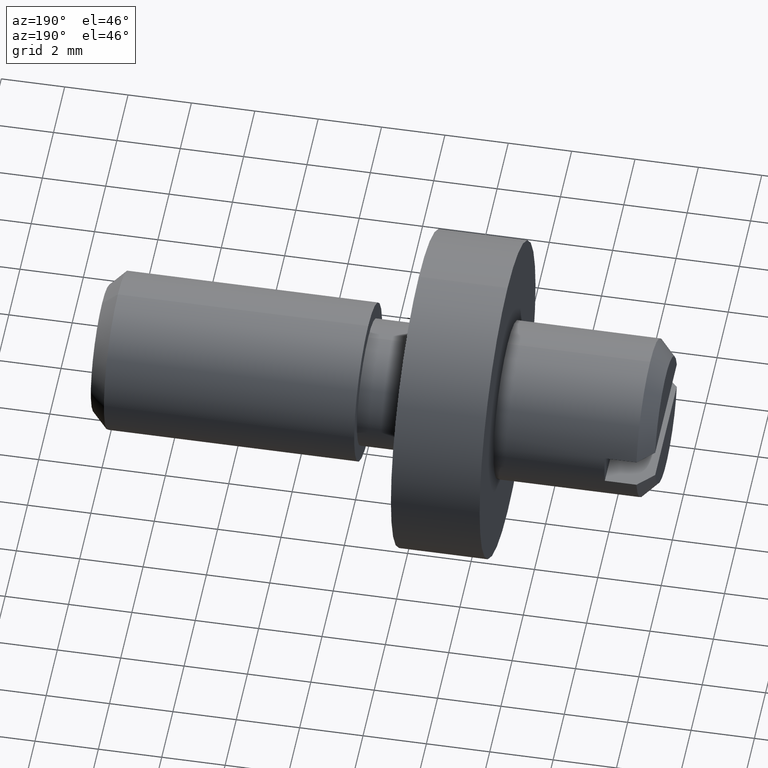
[diagram: clean part render]
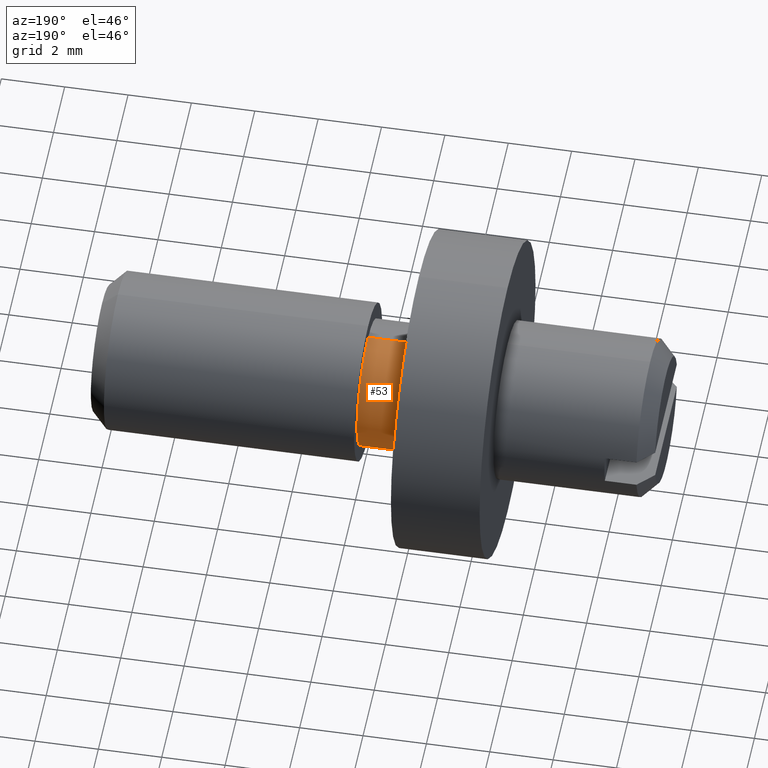
[diagram: same view with one face highlighted and labeled with its STEP entity id]
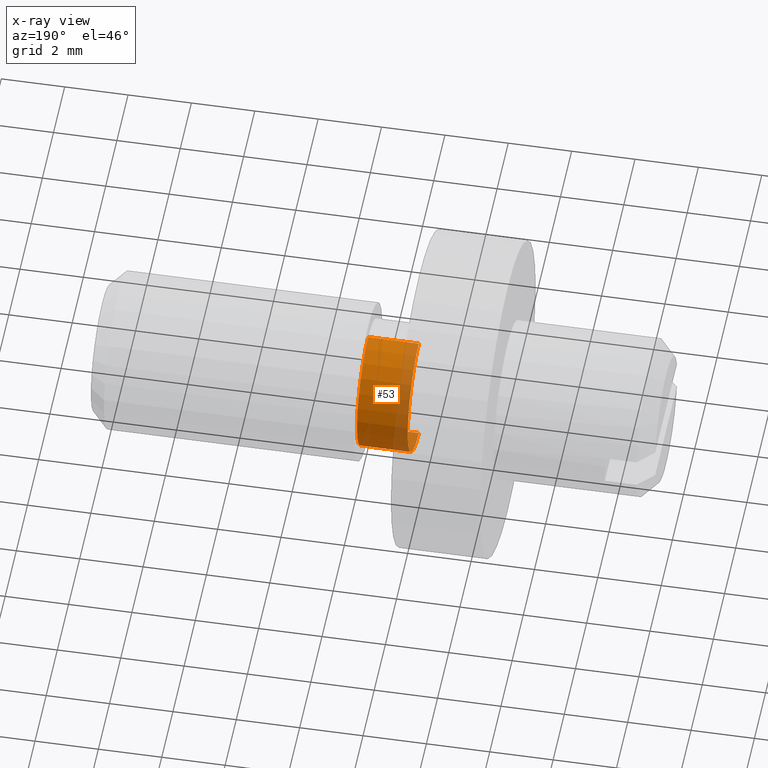
[diagram: x-ray of the same camera — body ghosted, the highlighted face saturated]
A machine part, auxiliary view. The second image highlights one B-rep face of the part: STEP entity #53.
The next image is the same camera in x-ray: the body ghosted, the highlighted face saturated — about 26% of this face is hidden behind the body in this view.
In plain terms, the highlighted cylindrical surface (partial cylindrical patch) has radius 2 mm, axis along (-1, -0, 0).
Its self-contained STEP definition (entity closure, byte-faithful):
#53=ADVANCED_FACE('',(#195),#194,.T.);
#194=CYLINDRICAL_SURFACE('',#357,2.00000000000E+00);
#195=FACE_OUTER_BOUND('',#358,.T.);
#354=CARTESIAN_POINT('',(-9.19999980927E+00,0.00000000000E+00,0.00000000000E+00));
#355=DIRECTION('',(-1.00000000000E+00,-0.00000000000E+00,0.00000000000E+00));
#356=DIRECTION('',(0.00000000000E+00,-0.00000000000E+00,1.00000000000E+00));
#357=AXIS2_PLACEMENT_3D('',#354,#355,#356);
#358=EDGE_LOOP('',(#458,#459,#460,#461));
#458=ORIENTED_EDGE('',*,*,#523,.F.);
#459=ORIENTED_EDGE('',*,*,#534,.F.);
#460=ORIENTED_EDGE('',*,*,#519,.T.);
#461=ORIENTED_EDGE('',*,*,#535,.T.);
#519=EDGE_CURVE('',#682,#681,#689,.T.);
#523=EDGE_CURVE('',#710,#709,#717,.T.);
#534=EDGE_CURVE('',#682,#710,#788,.T.);
#535=EDGE_CURVE('',#681,#709,#794,.T.);
#681=VERTEX_POINT('',#939);
#682=VERTEX_POINT('',#940);
#689=CIRCLE('',#948,2.00000000000E+00);
#709=VERTEX_POINT('',#959);
#710=VERTEX_POINT('',#960);
#717=CIRCLE('',#968,2.00000000000E+00);
#788=(BOUNDED_CURVE() B_SPLINE_CURVE(1,(#1010,#1011),.UNSPECIFIED.,.F.,.F.) B_SPLINE_CURVE_WITH_KNOTS((2,2),(8.33333134656E-02,9.16666653270E-01),.UNSPECIFIED.) CURVE() GEOMETRIC_REPRESENTATION_ITEM() RATIONAL_B_SPLINE_CURVE((1.00000000000E+00,1.00000000000E+00)) REPRESENTATION_ITEM('') );
#794=(BOUNDED_CURVE() B_SPLINE_CURVE(1,(#1012,#1013),.UNSPECIFIED.,.F.,.F.) B_SPLINE_CURVE_WITH_KNOTS((2,2),(8.33333333333E-02,9.16666666667E-01),.UNSPECIFIED.) CURVE() GEOMETRIC_REPRESENTATION_ITEM() RATIONAL_B_SPLINE_CURVE((7.50000000000E-01,7.50000000000E-01)) REPRESENTATION_ITEM('') );
#939=CARTESIAN_POINT('',(-8.40000000000E+00,7.40148683083E-17,-2.00000000000E+00));
#940=CARTESIAN_POINT('',(-8.40000000000E+00,-4.66965875689E-16,2.00000000000E+00));
#945=CARTESIAN_POINT('',(-8.40000000000E+00,0.00000000000E+00,0.00000000000E+00));
#946=DIRECTION('',(-1.00000000000E+00,0.00000000000E+00,0.00000000000E+00));
#947=DIRECTION('',(-0.00000000000E+00,-1.11022302463E-16,1.00000000000E+00));
#948=AXIS2_PLACEMENT_3D('',#945,#946,#947);
#959=CARTESIAN_POINT('',(-1.00000000000E+01,2.44921270764E-16,-2.00000000000E+00));
#960=CARTESIAN_POINT('',(-1.00000000000E+01,7.40148683083E-17,2.00000000000E+00));
#965=CARTESIAN_POINT('',(-1.00000000000E+01,0.00000000000E+00,0.00000000000E+00));
#966=DIRECTION('',(-1.00000000000E+00,0.00000000000E+00,0.00000000000E+00));
#967=DIRECTION('',(-0.00000000000E+00,-0.00000000000E+00,-1.00000000000E+00));
#968=AXIS2_PLACEMENT_3D('',#965,#966,#967);
#1010=CARTESIAN_POINT('',(-8.39999996185E+00,0.00000000000E+00,2.00000000000E+00));
#1011=CARTESIAN_POINT('',(-9.99999997428E+00,0.00000000000E+00,2.00000000000E+00));
#1012=CARTESIAN_POINT('',(-8.40000000000E+00,-7.40148683083E-17,-2.00000000000E+00));
#1013=CARTESIAN_POINT('',(-1.00000000000E+01,-7.40148683083E-17,-2.00000000000E+00));